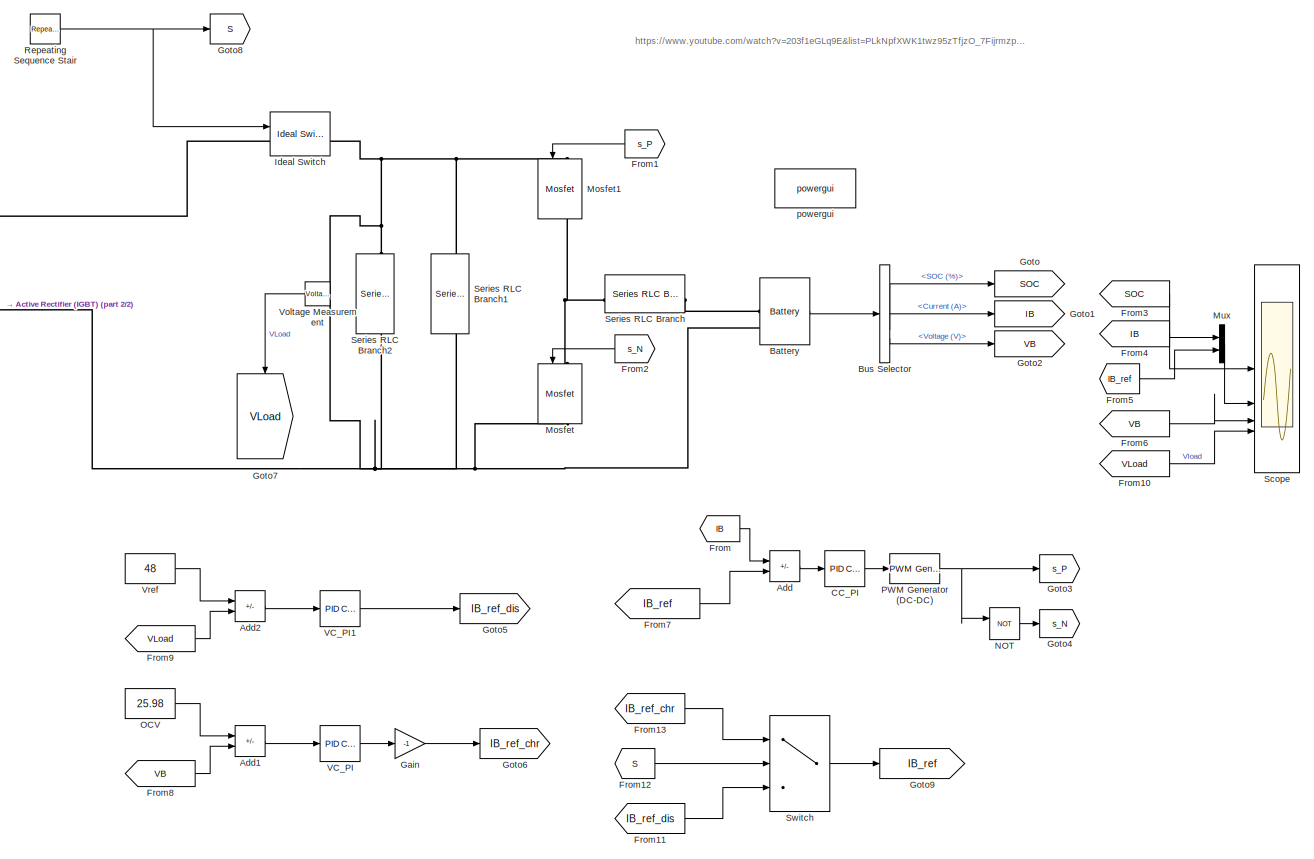
[diagram: root canvas - part 1/2, right side, full height]
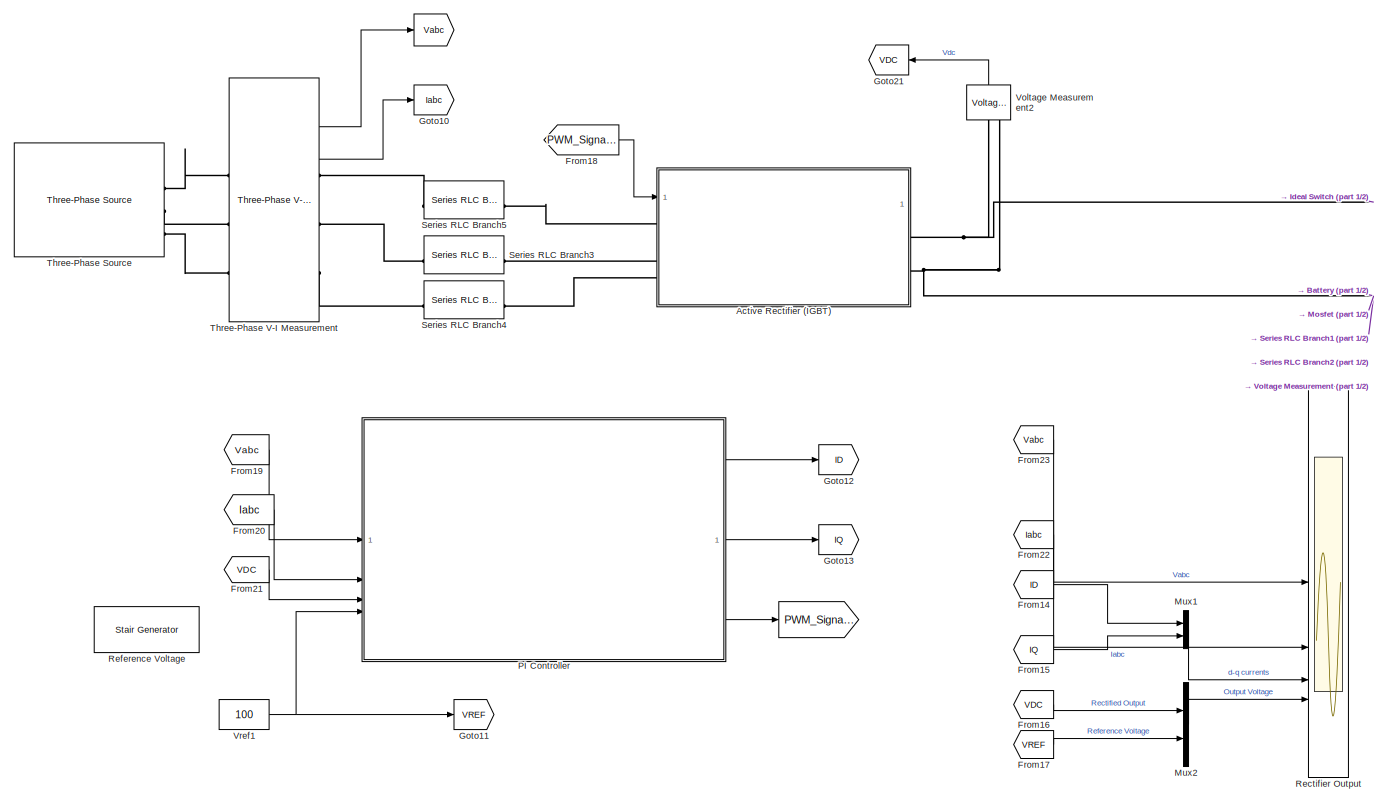
[diagram: root canvas - part 2/2, left side, full height]
MODEL slx_13e670ffb6af
KIND model
CONFIG AbsTol = auto
CONFIG EnableMultiTasking = off
CONFIG FixedStep = auto
CONFIG MaxStep = auto
CONFIG MinStep = auto
CONFIG RelTol = 1e-3
CONFIG SampleTimeConstraint = Unconstrained
CONFIG SolverName = VariableStepAuto
CONFIG StartTime = 0.0
CONFIG StopTime = 20
BLOCK [Goto]  
  GotoTag = Vabc
BLOCK [Goto]    
  GotoTag = PWM_Signals
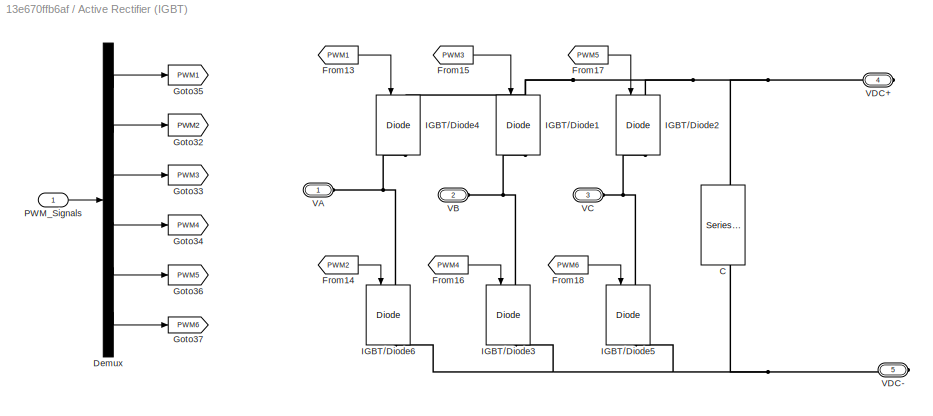
BLOCK [SubSystem] Active Rectifier (IGBT)
BLOCK [Reference] Active Rectifier (IGBT)/C  REF=spsSeriesRLCBranchLib/Series RLC Branch
  NameLocation = left
  SourceBlock = spsSeriesRLCBranchLib/Series RLC Branch
  SourceType = Series RLC Branch
BLOCK [Demux] Active Rectifier (IGBT)/Demux
  Outputs = 6
BLOCK [From] Active Rectifier (IGBT)/From13
  GotoTag = PWM1
BLOCK [From] Active Rectifier (IGBT)/From14
  GotoTag = PWM2
BLOCK [From] Active Rectifier (IGBT)/From15
  GotoTag = PWM3
BLOCK [From] Active Rectifier (IGBT)/From16
  GotoTag = PWM4
BLOCK [From] Active Rectifier (IGBT)/From17
  GotoTag = PWM5
BLOCK [From] Active Rectifier (IGBT)/From18
  GotoTag = PWM6
BLOCK [Goto] Active Rectifier (IGBT)/Goto32
  GotoTag = PWM2
BLOCK [Goto] Active Rectifier (IGBT)/Goto33
  GotoTag = PWM3
BLOCK [Goto] Active Rectifier (IGBT)/Goto34
  GotoTag = PWM4
BLOCK [Goto] Active Rectifier (IGBT)/Goto35
  GotoTag = PWM1
BLOCK [Goto] Active Rectifier (IGBT)/Goto36
  GotoTag = PWM5
BLOCK [Goto] Active Rectifier (IGBT)/Goto37
  GotoTag = PWM6
BLOCK [Reference] Active Rectifier (IGBT)/IGBT//Diode1  REF=spsIGBTDiodeLib/IGBT//Diode
  NameLocation = left
  SourceBlock = spsIGBTDiodeLib/IGBT//Diode
  SourceType = IGBT/Diode
BLOCK [Reference] Active Rectifier (IGBT)/IGBT//Diode2  REF=spsIGBTDiodeLib/IGBT//Diode
  NameLocation = left
  SourceBlock = spsIGBTDiodeLib/IGBT//Diode
  SourceType = IGBT/Diode
BLOCK [Reference] Active Rectifier (IGBT)/IGBT//Diode3  REF=spsIGBTDiodeLib/IGBT//Diode
  NameLocation = left
  SourceBlock = spsIGBTDiodeLib/IGBT//Diode
  SourceType = IGBT/Diode
BLOCK [Reference] Active Rectifier (IGBT)/IGBT//Diode4  REF=spsIGBTDiodeLib/IGBT//Diode
  NameLocation = left
  SourceBlock = spsIGBTDiodeLib/IGBT//Diode
  SourceType = IGBT/Diode
BLOCK [Reference] Active Rectifier (IGBT)/IGBT//Diode5  REF=spsIGBTDiodeLib/IGBT//Diode
  NameLocation = left
  SourceBlock = spsIGBTDiodeLib/IGBT//Diode
  SourceType = IGBT/Diode
BLOCK [Reference] Active Rectifier (IGBT)/IGBT//Diode6  REF=spsIGBTDiodeLib/IGBT//Diode
  NameLocation = left
  SourceBlock = spsIGBTDiodeLib/IGBT//Diode
  SourceType = IGBT/Diode
BLOCK [Inport] Active Rectifier (IGBT)/PWM_Signals
BLOCK [PMIOPort] Active Rectifier (IGBT)/VA
  Side = Left
BLOCK [PMIOPort] Active Rectifier (IGBT)/VB
  Port = 2
  Side = Left
BLOCK [PMIOPort] Active Rectifier (IGBT)/VC
  Port = 3
  Side = Left
BLOCK [PMIOPort] Active Rectifier (IGBT)/VDC+
  NameLocation = top
  Port = 4
  Side = Right
BLOCK [PMIOPort] Active Rectifier (IGBT)/VDC-
  NameLocation = top
  Port = 5
  Side = Right
BLOCK [Sum] Add
  IconShape = rectangular
  Inputs = +-
BLOCK [Sum] Add1
  IconShape = rectangular
  Inputs = +-
BLOCK [Sum] Add2
  IconShape = rectangular
  Inputs = +-
BLOCK [Reference] Battery  REF=spsBatteryLib/Battery
  LibrarySourceBlock = sps_lib/Sources/Battery
  SourceBlock = spsBatteryLib/Battery
  SourceType = Battery
BLOCK [BusSelector] Bus Selector
  OutputSignals = SOC (%),Current (A),Voltage (V)
BLOCK [Reference] CC_PI  REF=slpidlib/PID Controller
  LibrarySourceBlock = simulink/Continuous/PID Controller
  SourceBlock = slpidlib/PID Controller
  SourceType = PID 1dof
BLOCK [From] From
  GotoTag = IB
BLOCK [From] From1
  GotoTag = s_P
  NameLocation = top
BLOCK [From] From10
  GotoTag = VLoad
BLOCK [From] From11
  GotoTag = IB_ref_dis
BLOCK [From] From12
  GotoTag = S
BLOCK [From] From13
  GotoTag = IB_ref_chr
BLOCK [From] From14
  GotoTag = ID
BLOCK [From] From15
  GotoTag = IQ
BLOCK [From] From16
  GotoTag = VDC
BLOCK [From] From17
  GotoTag = VREF
BLOCK [From] From18
  GotoTag = PWM_Signals
BLOCK [From] From19
  GotoTag = Vabc
BLOCK [From] From2
  GotoTag = s_N
  NameLocation = top
BLOCK [From] From20
  GotoTag = Iabc
BLOCK [From] From21
  GotoTag = VDC
BLOCK [From] From22
  GotoTag = Iabc
BLOCK [From] From23
  GotoTag = Vabc
BLOCK [From] From3
  GotoTag = SOC
BLOCK [From] From4
  GotoTag = IB
BLOCK [From] From5
  GotoTag = IB_ref
BLOCK [From] From6
  GotoTag = VB
BLOCK [From] From7
  GotoTag = IB_ref
BLOCK [From] From8
  GotoTag = VB
BLOCK [From] From9
  GotoTag = VLoad
BLOCK [Gain] Gain
  Gain = -1
BLOCK [Goto] Goto
  GotoTag = SOC
BLOCK [Goto] Goto1
  GotoTag = IB
BLOCK [Goto] Goto10
  GotoTag = Iabc
BLOCK [Goto] Goto11
  GotoTag = VREF
BLOCK [Goto] Goto12
  GotoTag = ID
BLOCK [Goto] Goto13
  GotoTag = IQ
BLOCK [Goto] Goto2
  GotoTag = VB
BLOCK [Goto] Goto21
  GotoTag = VDC
  NameLocation = top
BLOCK [Goto] Goto3
  GotoTag = s_P
  NameLocation = top
BLOCK [Goto] Goto4
  GotoTag = s_N
  NameLocation = top
BLOCK [Goto] Goto5
  GotoTag = IB_ref_dis
  NameLocation = top
BLOCK [Goto] Goto6
  GotoTag = IB_ref_chr
  NameLocation = top
BLOCK [Goto] Goto7
  GotoTag = VLoad
  NameLocation = left
BLOCK [Goto] Goto8
  GotoTag = S
BLOCK [Goto] Goto9
  GotoTag = IB_ref
BLOCK [Reference] Ideal Switch  REF=spsIdealSwitchLib/Ideal Switch
  LibrarySourceBlock = sps_lib/Power Electronics/Ideal Switch
  SourceBlock = spsIdealSwitchLib/Ideal Switch
  SourceType = Ideal Switch
BLOCK [Reference] Mosfet  REF=spsMosfetLib/Mosfet
  LibrarySourceBlock = sps_lib/Power Electronics/Mosfet
  NameLocation = left
  SourceBlock = spsMosfetLib/Mosfet
  SourceType = Mosfet
BLOCK [Reference] Mosfet1  REF=spsMosfetLib/Mosfet
  LibrarySourceBlock = sps_lib/Power Electronics/Mosfet
  NameLocation = left
  SourceBlock = spsMosfetLib/Mosfet
  SourceType = Mosfet
BLOCK [Mux] Mux
  DisplayOption = bar
  Inputs = 2
BLOCK [Mux] Mux1
  DisplayOption = bar
  Inputs = 2
BLOCK [Mux] Mux2
  DisplayOption = bar
  Inputs = 2
BLOCK [Logic] NOT
  AllPortsSameDT = off
  IconShape = distinctive
  Operator = NOT
  OutDataTypeStr = boolean
BLOCK [Constant] OCV
  Value = 25.98
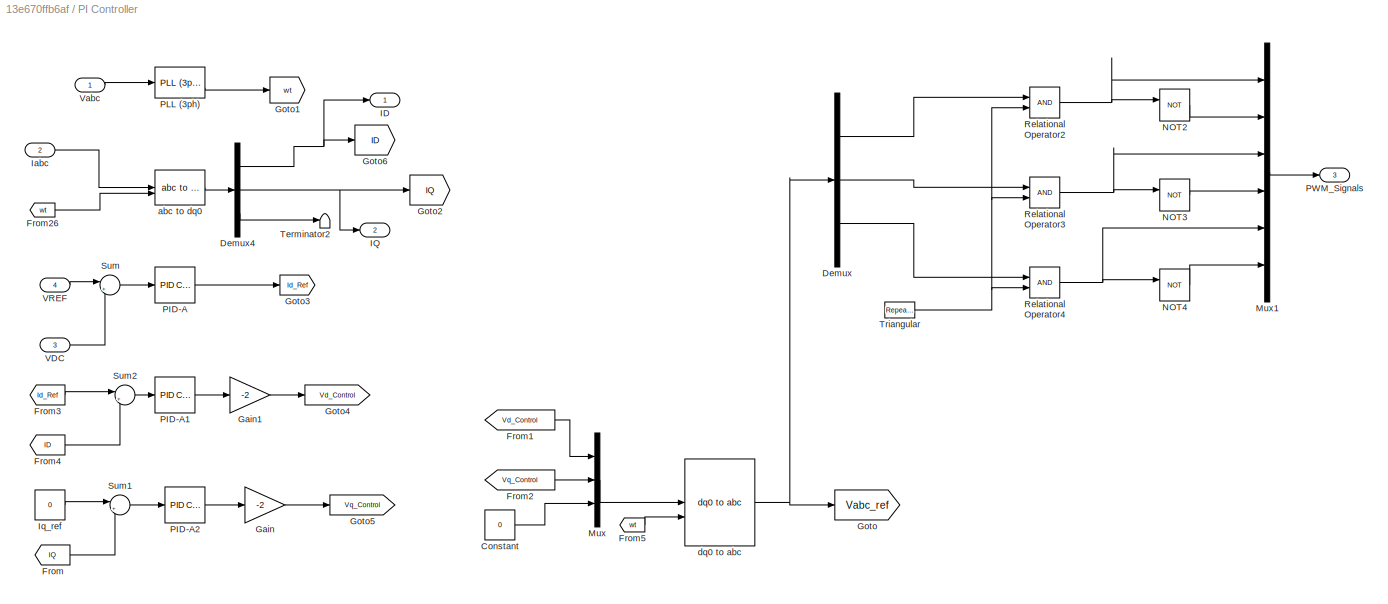
BLOCK [SubSystem] PI Controller
BLOCK [Constant] PI Controller/Constant
  Value = 0
BLOCK [Demux] PI Controller/Demux
  Outputs = 3
BLOCK [Demux] PI Controller/Demux4
  Outputs = 3
BLOCK [From] PI Controller/From
  GotoTag = IQ
BLOCK [From] PI Controller/From1
  GotoTag = Vd_Control
  TagVisibility = global
BLOCK [From] PI Controller/From2
  GotoTag = Vq_Control
  TagVisibility = global
BLOCK [From] PI Controller/From26
  GotoTag = wt
BLOCK [From] PI Controller/From3
  GotoTag = Id_Ref
  TagVisibility = global
BLOCK [From] PI Controller/From4
  GotoTag = ID
BLOCK [From] PI Controller/From5
  GotoTag = wt
BLOCK [Gain] PI Controller/Gain
  Gain = -2
BLOCK [Gain] PI Controller/Gain1
  Gain = -2
BLOCK [Goto] PI Controller/Goto
  GotoTag = Vabc_ref
BLOCK [Goto] PI Controller/Goto1
  GotoTag = wt
BLOCK [Goto] PI Controller/Goto2
  GotoTag = IQ
BLOCK [Goto] PI Controller/Goto3
  GotoTag = Id_Ref
  TagVisibility = global
BLOCK [Goto] PI Controller/Goto4
  GotoTag = Vd_Control
  TagVisibility = global
BLOCK [Goto] PI Controller/Goto5
  GotoTag = Vq_Control
  TagVisibility = global
BLOCK [Goto] PI Controller/Goto6
  GotoTag = ID
BLOCK [Outport] PI Controller/ID
BLOCK [Outport] PI Controller/IQ
  Port = 2
BLOCK [Inport] PI Controller/Iabc
  Port = 2
BLOCK [Constant] PI Controller/Iq_ref
  Value = 0
BLOCK [Mux] PI Controller/Mux
  DisplayOption = bar
  Inputs = 3
BLOCK [Mux] PI Controller/Mux1
  DisplayOption = bar
  Inputs = 6
BLOCK [Logic] PI Controller/NOT2
  AllPortsSameDT = off
  Operator = NOT
  OutDataTypeStr = boolean
BLOCK [Logic] PI Controller/NOT3
  AllPortsSameDT = off
  Operator = NOT
  OutDataTypeStr = boolean
BLOCK [Logic] PI Controller/NOT4
  AllPortsSameDT = off
  Operator = NOT
  OutDataTypeStr = boolean
BLOCK [Reference] PI Controller/PID-A  REF=slpidlib/PID Controller
  SourceBlock = slpidlib/PID Controller
  SourceType = PID 1dof
BLOCK [Reference] PI Controller/PID-A1  REF=slpidlib/PID Controller
  SourceBlock = slpidlib/PID Controller
  SourceType = PID 1dof
BLOCK [Reference] PI Controller/PID-A2  REF=slpidlib/PID Controller
  SourceBlock = slpidlib/PID Controller
  SourceType = PID 1dof
BLOCK [Reference] PI Controller/PLL (3ph)  REF=spsPLL3phLib/PLL
(3ph)
  SourceBlock = spsPLL3phLib/PLL\n(3ph)
  SourceType = PLL (3ph)
BLOCK [Outport] PI Controller/PWM_Signals
  Port = 3
BLOCK [RelationalOperator] PI Controller/Relational Operator2
  InputSameDT = off
  OutDataTypeStr = boolean
  RndMeth = Simplest
BLOCK [RelationalOperator] PI Controller/Relational Operator3
  InputSameDT = off
  OutDataTypeStr = boolean
  RndMeth = Simplest
BLOCK [RelationalOperator] PI Controller/Relational Operator4
  InputSameDT = off
  OutDataTypeStr = boolean
  RndMeth = Simplest
BLOCK [Sum] PI Controller/Sum
  Inputs = |+-
BLOCK [Sum] PI Controller/Sum1
  Inputs = |+-
BLOCK [Sum] PI Controller/Sum2
  Inputs = |+-
BLOCK [Terminator] PI Controller/Terminator2
BLOCK [Reference] PI Controller/Triangular  REF=simulink/Sources/Repeating
Sequence
  SourceBlock = simulink/Sources/Repeating\nSequence
  SourceType = Repeating table
BLOCK [Inport] PI Controller/VDC
  Port = 3
BLOCK [Inport] PI Controller/VREF
  Port = 4
BLOCK [Inport] PI Controller/Vabc
BLOCK [Reference] PI Controller/abc to dq0  REF=spsabctodq0Lib/abc to dq0
  SourceBlock = spsabctodq0Lib/abc to dq0
  SourceType = abc to dq0 Transformation
BLOCK [Reference] PI Controller/dq0 to abc  REF=spsdq0toabcLib/dq0 to abc
  SourceBlock = spsdq0toabcLib/dq0 to abc
  SourceType = dq0 to abc Transformation
BLOCK [Reference] PWM Generator (DC-DC)  REF=spsPWMGeneratorDCDCLib/PWM Generator
(DC-DC)
  LibrarySourceBlock = sps_lib/Power Electronics/Power Electronics Control/PWM Generator\n(DC-DC)
  SourceBlock = spsPWMGeneratorDCDCLib/PWM Generator\n(DC-DC)
  SourceType = PWM Generator (DC-DC)
BLOCK [Scope] Rectifier Output
  Floating = off
  NumInputPorts = 4
  ScopeSpecificationString = Simulink.scopes.TimeScopeBlockCfg('CurrentConfiguration', extmgr.ConfigurationSet(extmgr.Configuration('Core','General UI',true,'FigureColor',[1 1 1]),extmgr.Configuration('Core','Source UI',true),extmgr.Configuration('Sources','WiredSimulink',true,'DataLoggingVariableName','ScopeData1'),extmgr.Configuration('Visuals','Time Domain',true,'TimeAxisLabels','All','SerializedDisplays',{struct('MinYLimR...<+5023ch>
BLOCK [Reference] Reference Voltage  REF=eeStairGenerator/Stair Generator
  SourceBlock = eeStairGenerator/Stair Generator
  SourceType = Stair Generator
BLOCK [Reference] Repeating Sequence Stair  REF=simulink/Sources/Repeating
Sequence
Stair
  SourceBlock = simulink/Sources/Repeating\nSequence\nStair
  SourceType = Repeating Sequence Stair
BLOCK [Scope] Scope
  Floating = off
  NumInputPorts = 4
  ScopeSpecificationString = Simulink.scopes.TimeScopeBlockCfg('CurrentConfiguration', extmgr.ConfigurationSet(extmgr.Configuration('Core','General UI',true),extmgr.Configuration('Core','Source UI',true),extmgr.Configuration('Sources','WiredSimulink',true),extmgr.Configuration('Visuals','Time Domain',true,'SerializedDisplays',{struct('MinYLimReal','-5.85106','MaxYLimReal','52.65957','YLabelReal','','MinYLimMag','0.00000','Max...<+1547ch>
BLOCK [Reference] Series RLC Branch  REF=spsSeriesRLCBranchLib/Series RLC Branch
  LibrarySourceBlock = sps_lib/Passives/Series RLC Branch
  SourceBlock = spsSeriesRLCBranchLib/Series RLC Branch
  SourceType = Series RLC Branch
BLOCK [Reference] Series RLC Branch1  REF=spsSeriesRLCBranchLib/Series RLC Branch
  LibrarySourceBlock = sps_lib/Passives/Series RLC Branch
  NameLocation = left
  SourceBlock = spsSeriesRLCBranchLib/Series RLC Branch
  SourceType = Series RLC Branch
BLOCK [Reference] Series RLC Branch2  REF=spsSeriesRLCBranchLib/Series RLC Branch
  LibrarySourceBlock = sps_lib/Passives/Series RLC Branch
  NameLocation = left
  SourceBlock = spsSeriesRLCBranchLib/Series RLC Branch
  SourceType = Series RLC Branch
BLOCK [Reference] Series RLC Branch3  REF=spsSeriesRLCBranchLib/Series RLC Branch
  NameLocation = top
  SourceBlock = spsSeriesRLCBranchLib/Series RLC Branch
  SourceType = Series RLC Branch
BLOCK [Reference] Series RLC Branch4  REF=spsSeriesRLCBranchLib/Series RLC Branch
  NameLocation = top
  SourceBlock = spsSeriesRLCBranchLib/Series RLC Branch
  SourceType = Series RLC Branch
BLOCK [Reference] Series RLC Branch5  REF=spsSeriesRLCBranchLib/Series RLC Branch
  NameLocation = top
  SourceBlock = spsSeriesRLCBranchLib/Series RLC Branch
  SourceType = Series RLC Branch
BLOCK [Switch] Switch
  Criteria = u2 > Threshold
  InputSameDT = off
  SaturateOnIntegerOverflow = off
BLOCK [Reference] Three-Phase Source   REF=spsThreePhaseSourceLib/Three-Phase Source
  SourceBlock = spsThreePhaseSourceLib/Three-Phase Source
  SourceType = Three-Phase Source
BLOCK [Reference] Three-Phase V-I Measurement   REF=spsThreePhaseVIMeasurementLib/Three-Phase
V-I Measurement
  SourceBlock = spsThreePhaseVIMeasurementLib/Three-Phase\nV-I Measurement
  SourceType = Three-Phase VI Measurement
BLOCK [Reference] VC_PI  REF=slpidlib/PID Controller
  LibrarySourceBlock = simulink/Continuous/PID Controller
  SourceBlock = slpidlib/PID Controller
  SourceType = PID 1dof
BLOCK [Reference] VC_PI1  REF=slpidlib/PID Controller
  LibrarySourceBlock = simulink/Continuous/PID Controller
  SourceBlock = slpidlib/PID Controller
  SourceType = PID 1dof
BLOCK [Reference] Voltage Measurement  REF=spsVoltageMeasurementLib/Voltage Measurement
  LibrarySourceBlock = sps_lib/Sensors and Measurements/Voltage Measurement
  SourceBlock = spsVoltageMeasurementLib/Voltage Measurement
  SourceType = Voltage Measurement
  UserDataPersistent = on
BLOCK [Reference] Voltage Measurement2  REF=spsVoltageMeasurementLib/Voltage Measurement
  NameLocation = right
  SourceBlock = spsVoltageMeasurementLib/Voltage Measurement
  SourceType = Voltage Measurement
  UserDataPersistent = on
BLOCK [Constant] Vref
  Value = 48
BLOCK [Constant] Vref1
  Value = 100
BLOCK [Reference] powergui  REF=sps_lib/powergui
  LibrarySourceBlock = sps_lib/powergui
  Priority = 1
  SourceBlock = sps_lib/powergui
  SourceType = PSB option menu block
ANNOTATION (root): https://www.youtube.com/watch?v=203f1eGLq9E&list=PLkNpfXWK1twz95zTfjzO_7FijrmzppBkw&index=7
LINE Active Rectifier (IGBT)/Demux:1 -> Active Rectifier (IGBT)/Goto35:1
LINE Active Rectifier (IGBT)/Demux:2 -> Active Rectifier (IGBT)/Goto32:1
LINE Active Rectifier (IGBT)/Demux:3 -> Active Rectifier (IGBT)/Goto33:1
LINE Active Rectifier (IGBT)/Demux:4 -> Active Rectifier (IGBT)/Goto34:1
LINE Active Rectifier (IGBT)/Demux:5 -> Active Rectifier (IGBT)/Goto36:1
LINE Active Rectifier (IGBT)/Demux:6 -> Active Rectifier (IGBT)/Goto37:1
LINE Active Rectifier (IGBT)/From13:1 -> Active Rectifier (IGBT)/IGBT//Diode4:1
LINE Active Rectifier (IGBT)/From14:1 -> Active Rectifier (IGBT)/IGBT//Diode6:1
LINE Active Rectifier (IGBT)/From15:1 -> Active Rectifier (IGBT)/IGBT//Diode1:1
LINE Active Rectifier (IGBT)/From16:1 -> Active Rectifier (IGBT)/IGBT//Diode3:1
LINE Active Rectifier (IGBT)/From17:1 -> Active Rectifier (IGBT)/IGBT//Diode2:1
LINE Active Rectifier (IGBT)/From18:1 -> Active Rectifier (IGBT)/IGBT//Diode5:1
LINE Active Rectifier (IGBT)/PWM_Signals:1 -> Active Rectifier (IGBT)/Demux:1
LINE Add1:1 -> VC_PI:1
LINE Add2:1 -> VC_PI1:1
LINE Add:1 -> CC_PI:1
LINE Battery:1 -> Bus Selector:1
LINE Bus Selector:1 -> Goto:1
LINE Bus Selector:2 -> Goto1:1
LINE Bus Selector:3 -> Goto2:1
LINE CC_PI:1 -> PWM Generator (DC-DC):1
LINE From10:1 -> Scope:4
LINE From11:1 -> Switch:3
LINE From12:1 -> Switch:2
LINE From13:1 -> Switch:1
LINE From14:1 -> Mux1:1
LINE From15:1 -> Mux1:2
LINE From16:1 -> Mux2:1
LINE From17:1 -> Mux2:2
LINE From18:1 -> Active Rectifier (IGBT):1
LINE From19:1 -> PI Controller:1
LINE From1:1 -> Mosfet1:1
LINE From20:1 -> PI Controller:2
LINE From21:1 -> PI Controller:3
LINE From22:1 -> Rectifier Output:2
LINE From23:1 -> Rectifier Output:1
LINE From2:1 -> Mosfet:1
LINE From3:1 -> Scope:1
LINE From4:1 -> Mux:1
LINE From5:1 -> Mux:2
LINE From6:1 -> Scope:3
LINE From7:1 -> Add:2
LINE From8:1 -> Add1:2
LINE From9:1 -> Add2:2
LINE From:1 -> Add:1
LINE Gain:1 -> Goto6:1
LINE Mux1:1 -> Rectifier Output:3
LINE Mux2:1 -> Rectifier Output:4
LINE Mux:1 -> Scope:2
LINE NOT:1 -> Goto4:1
LINE OCV:1 -> Add1:1
LINE PI Controller/Constant:1 -> PI Controller/Mux:3
NET PI Controller/Demux4:1 -> PI Controller/Goto6:1, PI Controller/ID:1
NET PI Controller/Demux4:2 -> PI Controller/Goto2:1, PI Controller/IQ:1
LINE PI Controller/Demux4:3 -> PI Controller/Terminator2:1
LINE PI Controller/Demux:1 -> PI Controller/Relational Operator2:1
LINE PI Controller/Demux:2 -> PI Controller/Relational Operator3:1
LINE PI Controller/Demux:3 -> PI Controller/Relational Operator4:1
LINE PI Controller/From1:1 -> PI Controller/Mux:1
LINE PI Controller/From26:1 -> PI Controller/abc to dq0:2
LINE PI Controller/From2:1 -> PI Controller/Mux:2
LINE PI Controller/From3:1 -> PI Controller/Sum2:1
LINE PI Controller/From4:1 -> PI Controller/Sum2:2
LINE PI Controller/From5:1 -> PI Controller/dq0 to abc:2
LINE PI Controller/From:1 -> PI Controller/Sum1:2
LINE PI Controller/Gain1:1 -> PI Controller/Goto4:1
LINE PI Controller/Gain:1 -> PI Controller/Goto5:1
LINE PI Controller/Iabc:1 -> PI Controller/abc to dq0:1
LINE PI Controller/Iq_ref:1 -> PI Controller/Sum1:1
LINE PI Controller/Mux1:1 -> PI Controller/PWM_Signals:1
LINE PI Controller/Mux:1 -> PI Controller/dq0 to abc:1
LINE PI Controller/NOT2:1 -> PI Controller/Mux1:2
LINE PI Controller/NOT3:1 -> PI Controller/Mux1:4
LINE PI Controller/NOT4:1 -> PI Controller/Mux1:6
LINE PI Controller/PID-A1:1 -> PI Controller/Gain1:1
LINE PI Controller/PID-A2:1 -> PI Controller/Gain:1
LINE PI Controller/PID-A:1 -> PI Controller/Goto3:1
LINE PI Controller/PLL (3ph):2 -> PI Controller/Goto1:1
NET PI Controller/Relational Operator2:1 -> PI Controller/Mux1:1, PI Controller/NOT2:1
NET PI Controller/Relational Operator3:1 -> PI Controller/Mux1:3, PI Controller/NOT3:1
NET PI Controller/Relational Operator4:1 -> PI Controller/Mux1:5, PI Controller/NOT4:1
LINE PI Controller/Sum1:1 -> PI Controller/PID-A2:1
LINE PI Controller/Sum2:1 -> PI Controller/PID-A1:1
LINE PI Controller/Sum:1 -> PI Controller/PID-A:1
NET PI Controller/Triangular:1 -> PI Controller/Relational Operator2:2, PI Controller/Relational Operator3:2, PI Controller/Relational Operator4:2
LINE PI Controller/VDC:1 -> PI Controller/Sum:2
LINE PI Controller/VREF:1 -> PI Controller/Sum:1
LINE PI Controller/Vabc:1 -> PI Controller/PLL (3ph):1
LINE PI Controller/abc to dq0:1 -> PI Controller/Demux4:1
NET PI Controller/dq0 to abc:1 -> PI Controller/Demux:1, PI Controller/Goto:1
LINE PI Controller:1 -> Goto12:1
LINE PI Controller:2 -> Goto13:1
LINE PI Controller:3 ->    :1
NET PWM Generator (DC-DC):1 -> Goto3:1, NOT:1
NET Repeating Sequence Stair:1 -> Goto8:1, Ideal Switch:1
LINE Switch:1 -> Goto9:1
LINE Three-Phase V-I Measurement :1 ->  :1
LINE Three-Phase V-I Measurement :2 -> Goto10:1
LINE VC_PI1:1 -> Goto5:1
LINE VC_PI:1 -> Gain:1
LINE Voltage Measurement2:1 -> Goto21:1
LINE Voltage Measurement:1 -> Goto7:1
NET Vref1:1 -> Goto11:1, PI Controller:4
LINE Vref:1 -> Add2:1
PNET net1: Active Rectifier (IGBT)/C:LConn1 -- Active Rectifier (IGBT)/IGBT//Diode1:LConn1 -- Active Rectifier (IGBT)/IGBT//Diode2:LConn1 -- Active Rectifier (IGBT)/IGBT//Diode4:LConn1 -- Active Rectifier (IGBT)/VDC+:RConn1
PNET net2: Active Rectifier (IGBT)/C:RConn1 -- Active Rectifier (IGBT)/IGBT//Diode3:RConn1 -- Active Rectifier (IGBT)/IGBT//Diode5:RConn1 -- Active Rectifier (IGBT)/IGBT//Diode6:RConn1 -- Active Rectifier (IGBT)/VDC-:RConn1
PNET net3: Active Rectifier (IGBT)/IGBT//Diode1:RConn1 -- Active Rectifier (IGBT)/IGBT//Diode3:LConn1 -- Active Rectifier (IGBT)/VB:RConn1
PNET net4: Active Rectifier (IGBT)/IGBT//Diode2:RConn1 -- Active Rectifier (IGBT)/IGBT//Diode5:LConn1 -- Active Rectifier (IGBT)/VC:RConn1
PNET net5: Active Rectifier (IGBT)/IGBT//Diode4:RConn1 -- Active Rectifier (IGBT)/IGBT//Diode6:LConn1 -- Active Rectifier (IGBT)/VA:RConn1
PLINE Active Rectifier (IGBT):LConn1 -- Series RLC Branch5:LConn1
PLINE Active Rectifier (IGBT):LConn2 -- Series RLC Branch3:LConn1
PLINE Active Rectifier (IGBT):LConn3 -- Series RLC Branch4:LConn1
PNET net6: Active Rectifier (IGBT):RConn1 -- Ideal Switch:LConn1 -- Voltage Measurement2:LConn1
PNET net7: Active Rectifier (IGBT):RConn2 -- Battery:LConn2 -- Mosfet:RConn1 -- Series RLC Branch1:RConn1 -- Series RLC Branch2:RConn1 -- Voltage Measurement2:LConn2 -- Voltage Measurement:LConn2
PLINE Battery:LConn1 -- Series RLC Branch:RConn1
PNET net8: Ideal Switch:RConn1 -- Mosfet1:LConn1 -- Series RLC Branch1:LConn1 -- Series RLC Branch2:LConn1 -- Voltage Measurement:LConn1
PNET net9: Mosfet1:RConn1 -- Mosfet:LConn1 -- Series RLC Branch:LConn1
PLINE Series RLC Branch3:RConn1 -- Three-Phase V-I Measurement :RConn2
PLINE Series RLC Branch4:RConn1 -- Three-Phase V-I Measurement :RConn3
PLINE Series RLC Branch5:RConn1 -- Three-Phase V-I Measurement :RConn1
PLINE Three-Phase Source :RConn1 -- Three-Phase V-I Measurement :LConn1
PLINE Three-Phase Source :RConn2 -- Three-Phase V-I Measurement :LConn2
PLINE Three-Phase Source :RConn3 -- Three-Phase V-I Measurement :LConn3
note: NET lines group one-source signal fan-out (src -> all destinations, sorted); 1:1 wires keep LINE; PNET lines group multi-terminal physical nets as a canonical sorted terminal list (undirected conserving connections); 2-terminal nets keep the pairwise PLINE form
